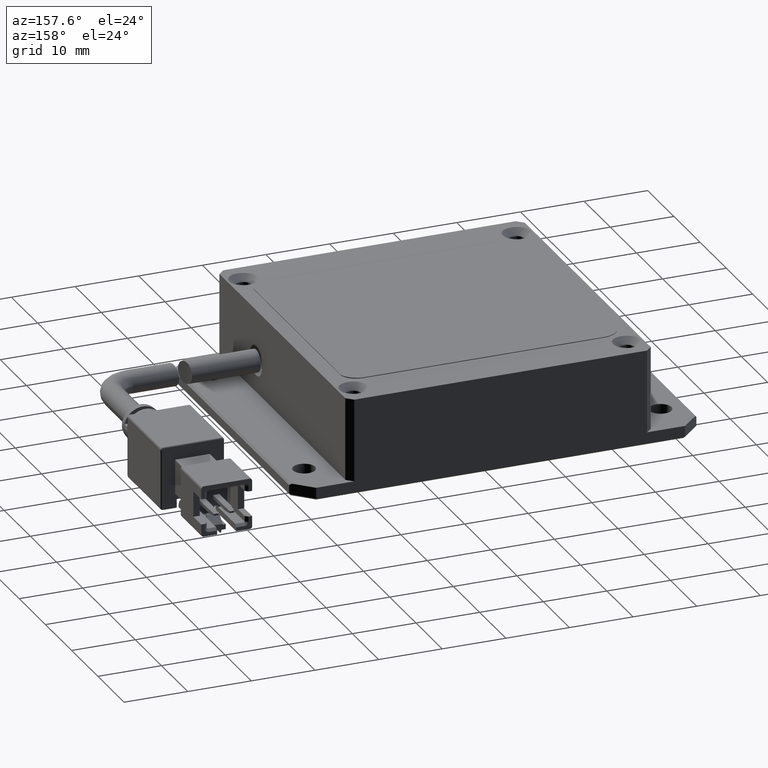
[diagram: clean part render]
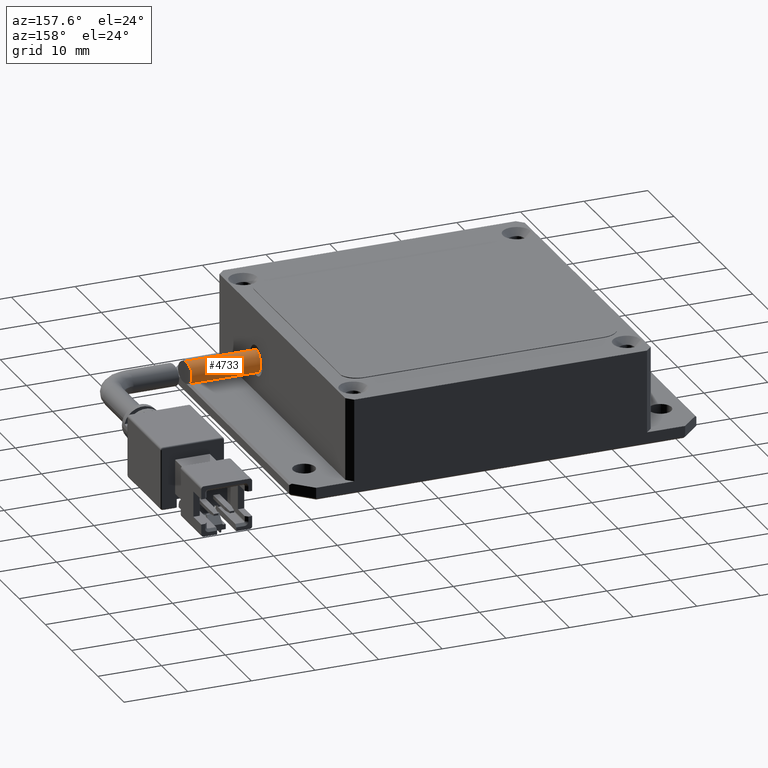
[diagram: same view with one face highlighted and labeled with its STEP entity id]
A machine part, auxiliary view. The second image highlights one B-rep face of the part: STEP entity #4733.
In plain terms, the highlighted cylindrical surface (edge-blend (fillet) strip) has radius 1.75 mm, axis along (-1, -0, 0).
Its self-contained STEP definition (entity closure, byte-faithful):
#509 = CARTESIAN_POINT ( 'NONE',  ( 34.18547818665029300, -7.483711359197188900, 6.739063936936073400 ) ) ;
#519 = CARTESIAN_POINT ( 'NONE',  ( 43.09316533027873700, -7.709049255440968200, 6.749999999983692200 ) ) ;
#574 = CARTESIAN_POINT ( 'NONE',  ( 33.89692689440316500, -5.958938031147830800, 4.886415906765197500 ) ) ;
#649 = CARTESIAN_POINT ( 'NONE',  ( 34.18458496218376300, -7.482044384313575800, 3.249999999981483300 ) ) ;
#727 = CARTESIAN_POINT ( 'NONE',  ( 23.09316533027874000, -7.709049255440968200, 6.749999999983692200 ) ) ;
#1141 = CARTESIAN_POINT ( 'NONE',  ( 23.09316533027874000, -7.709049255440968200, 3.249999999983691700 ) ) ;
#1591 = ORIENTED_EDGE ( 'NONE', *, *, #9460, .T. ) ;
#2080 = CARTESIAN_POINT ( 'NONE',  ( 34.11010186196399000, -7.153447760435692100, 6.663355660601737900 ) ) ;
#2144 = AXIS2_PLACEMENT_3D ( 'NONE', #15040, #5572, #16624 ) ;
#2151 = CARTESIAN_POINT ( 'NONE',  ( 33.90419792271495700, -6.015951904996540200, 4.542501227248019200 ) ) ;
#2324 = VERTEX_POINT ( 'NONE', #10290 ) ;
#2954 = DIRECTION ( 'NONE',  ( -1.000000000000000000, -3.081487911019577400E-033, 2.465190328815661900E-031 ) ) ;
#3393 = ORIENTED_EDGE ( 'NONE', *, *, #3970, .T. ) ;
#3618 = CYLINDRICAL_SURFACE ( 'NONE', #7262, 1.749999999999999800 ) ;
#3699 = CARTESIAN_POINT ( 'NONE',  ( 34.04421376357821300, -6.842513947094677600, 6.524655188080411800 ) ) ;
#3771 = CARTESIAN_POINT ( 'NONE',  ( 33.92102110617334200, -6.138718410947712200, 4.219018492086112500 ) ) ;
#3970 = EDGE_CURVE ( 'NONE', #2324, #18210, #16618, .T. ) ;
#4733 = ADVANCED_FACE ( 'NONE', ( #9344 ), #3618, .T. ) ;
#5303 = CARTESIAN_POINT ( 'NONE',  ( 33.99014078191443400, -6.561611287824118400, 6.326278952318390700 ) ) ;
#5374 = CARTESIAN_POINT ( 'NONE',  ( 33.94912622872069400, -6.322969662062731400, 3.925538596693293900 ) ) ;
#5572 = DIRECTION ( 'NONE',  ( 1.000000000000000000, 3.081487911019577400E-033, -2.465190328815661900E-031 ) ) ;
#6090 = VECTOR ( 'NONE', #11598, 1000.000000000000000 ) ;
#6191 = CARTESIAN_POINT ( 'NONE',  ( 34.23941991828349500, -7.709049255440968200, 6.749999999983692200 ) ) ;
#6817 = VERTEX_POINT ( 'NONE', #727 ) ;
#6889 = CARTESIAN_POINT ( 'NONE',  ( 33.94947908086432900, -6.325168555263819500, 6.077364700863119800 ) ) ;
#6960 = CARTESIAN_POINT ( 'NONE',  ( 33.99002387136437200, -6.561001310981425600, 3.674135481880954400 ) ) ;
#7262 = AXIS2_PLACEMENT_3D ( 'NONE', #9341, #17198, #17273 ) ;
#7392 = VERTEX_POINT ( 'NONE', #6191 ) ;
#8388 = CARTESIAN_POINT ( 'NONE',  ( 34.23941991828349500, -7.709049255440968200, 6.749999999983692200 ) ) ;
#8455 = CARTESIAN_POINT ( 'NONE',  ( 33.92118851216017800, -6.139878731360666600, 5.783222288375472300 ) ) ;
#8517 = CARTESIAN_POINT ( 'NONE',  ( 34.04367563133999400, -6.839852291691572700, 3.476866022252064000 ) ) ;
#9341 = CARTESIAN_POINT ( 'NONE',  ( 43.09316533027873700, -7.709049255440968200, 4.999999999983692200 ) ) ;
#9344 = FACE_OUTER_BOUND ( 'NONE', #13738, .T. ) ;
#9460 = EDGE_CURVE ( 'NONE', #7392, #2324, #19434, .T. ) ;
#9985 = CARTESIAN_POINT ( 'NONE',  ( 34.21200105006614200, -7.595541064884040200, 6.749999999983694800 ) ) ;
#10038 = CIRCLE ( 'NONE', #2144, 1.749999999999999800 ) ;
#10057 = CARTESIAN_POINT ( 'NONE',  ( 33.89696887799728800, -5.959274183812097700, 5.232270904796477500 ) ) ;
#10125 = CARTESIAN_POINT ( 'NONE',  ( 34.13248588412908200, -7.257651502076334400, 3.294005250062242800 ) ) ;
#10290 = CARTESIAN_POINT ( 'NONE',  ( 34.23941991828349500, -7.709049255440967300, 3.249999999983691700 ) ) ;
#11587 = CARTESIAN_POINT ( 'NONE',  ( 34.13464139543553000, -7.263199010234669300, 6.695977034952434800 ) ) ;
#11598 = DIRECTION ( 'NONE',  ( -1.000000000000000000, -3.081487911019577400E-033, 2.465190328815661900E-031 ) ) ;
#11659 = CARTESIAN_POINT ( 'NONE',  ( 33.89834485059550000, -5.970460837191649400, 4.769361588035637900 ) ) ;
#11719 = CARTESIAN_POINT ( 'NONE',  ( 34.23941991828349500, -7.709049255440967300, 3.249999999983691700 ) ) ;
#11939 = VECTOR ( 'NONE', #2954, 1000.000000000000000 ) ;
#12422 = CARTESIAN_POINT ( 'NONE',  ( 43.09316533027873700, -7.709049255440968200, 3.249999999983692200 ) ) ;
#13153 = CARTESIAN_POINT ( 'NONE',  ( 34.06482056854621000, -6.942748921033113700, 6.577412080718656500 ) ) ;
#13220 = CARTESIAN_POINT ( 'NONE',  ( 33.90859719383024600, -6.049611194117327200, 4.432429389860755200 ) ) ;
#13415 = EDGE_CURVE ( 'NONE', #7392, #6817, #18194, .T. ) ;
#13543 = EDGE_CURVE ( 'NONE', #18210, #6817, #10038, .T. ) ;
#13738 = EDGE_LOOP ( 'NONE', ( #1591, #3393, #19889, #19022 ) ) ;
#14757 = CARTESIAN_POINT ( 'NONE',  ( 34.00692990574884800, -6.652309356974908100, 6.399556240436710100 ) ) ;
#14827 = CARTESIAN_POINT ( 'NONE',  ( 33.92910779428146400, -6.194461351661285400, 4.115857800976876000 ) ) ;
#15040 = CARTESIAN_POINT ( 'NONE',  ( 23.09316533027874000, -7.709049255440968200, 4.999999999983692200 ) ) ;
#16347 = CARTESIAN_POINT ( 'NONE',  ( 33.96150786624038200, -6.398467380638796200, 6.165334672245157900 ) ) ;
#16401 = CARTESIAN_POINT ( 'NONE',  ( 33.96111761944381200, -6.396186695672054300, 3.837105893756212400 ) ) ;
#16618 = LINE ( 'NONE', #12422, #11939 ) ;
#16624 = DIRECTION ( 'NONE',  ( 0.0000000000000000000, 0.0000000000000000000, 1.000000000000000000 ) ) ;
#17198 = DIRECTION ( 'NONE',  ( -1.000000000000000000, -3.081487911019577400E-033, 2.465190328815661900E-031 ) ) ;
#17273 = DIRECTION ( 'NONE',  ( 0.0000000000000000000, 0.0000000000000000000, 1.000000000000000000 ) ) ;
#17934 = CARTESIAN_POINT ( 'NONE',  ( 33.92927140695551500, -6.195576230902624100, 5.886137627566769800 ) ) ;
#17998 = CARTESIAN_POINT ( 'NONE',  ( 34.00649050331865900, -6.649981866935467800, 3.602210050629402800 ) ) ;
#18194 = LINE ( 'NONE', #519, #6090 ) ;
#18210 = VERTEX_POINT ( 'NONE', #1141 ) ;
#19022 = ORIENTED_EDGE ( 'NONE', *, *, #13415, .F. ) ;
#19434 = B_SPLINE_CURVE_WITH_KNOTS ( 'NONE', 3,
 ( #8388, #9985, #509, #11587, #2080, #13153, #3699, #14757, #5303, #16347, #6889, #17934, #8455, #19525, #10057, #574, #11659, #2151, #13220, #3771, #14827, #5374, #16401, #6960, #17998, #8517, #19598, #10125, #649, #11719 ),
 .UNSPECIFIED., .F., .F.,
 ( 4, 2, 2, 2, 2, 2, 2, 2, 2, 2, 2, 2, 2, 2, 4 ),
 ( 0.005548308325376451500, 0.005893685317680528700, 0.006239062309984604900, 0.006584439302288682000, 0.006929816294592758300, 0.007275193286896835400, 0.007620570279200912500, 0.008311324263809066700, 0.008656701256113143900, 0.009002078248417221000, 0.009347455240721299800, 0.009692832233025378700, 0.01003820922532945600, 0.01038358621763353300, 0.01107434020224168500 ),
 .UNSPECIFIED. ) ;
#19525 = CARTESIAN_POINT ( 'NONE',  ( 33.90255331987480500, -6.006342207437562300, 5.464996618663800400 ) ) ;
#19598 = CARTESIAN_POINT ( 'NONE',  ( 34.06466192210020700, -6.941986355634253600, 3.422966705355530600 ) ) ;
#19889 = ORIENTED_EDGE ( 'NONE', *, *, #13543, .T. ) ;